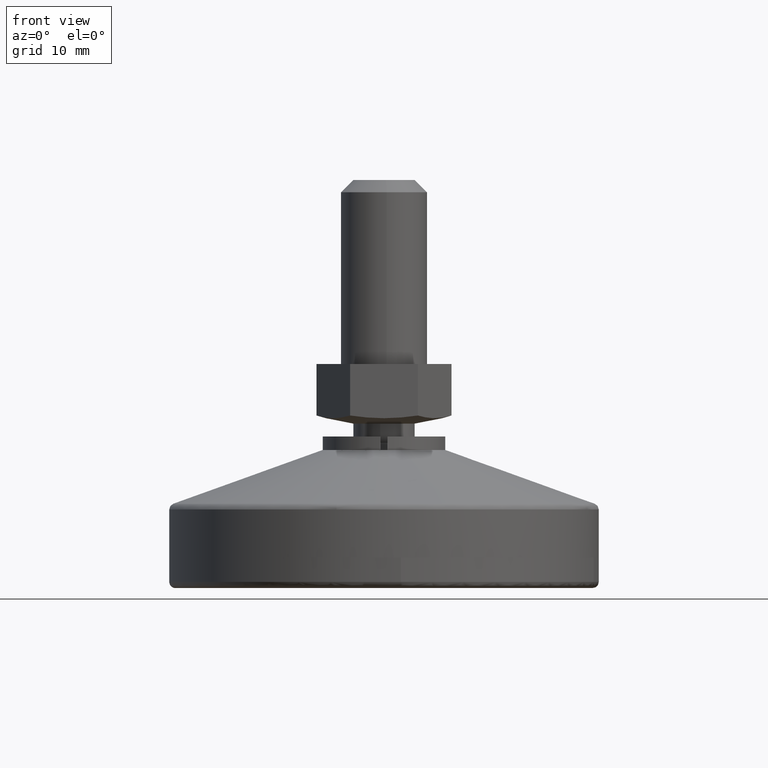
[diagram: clean part render]
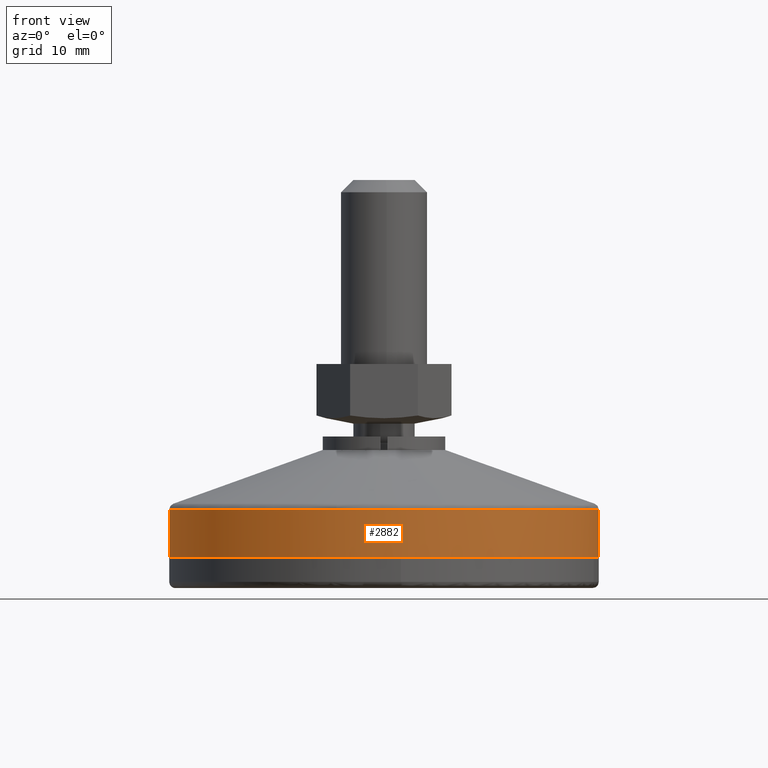
[diagram: same view with one face highlighted and labeled with its STEP entity id]
A machine part, front view. The second image highlights one B-rep face of the part: STEP entity #2882.
In plain terms, the highlighted face is a freeform B-spline surface patch.
Its self-contained STEP definition (entity closure, byte-faithful):
#2716=CARTESIAN_POINT('',(32.765025257183019,12.306629103705010,12.992102325194528));
#2717=CARTESIAN_POINT('',(34.613740677780285,7.384630810039270,12.992102325194523));
#2718=CARTESIAN_POINT('',(34.934717944765339,2.136698883719975,12.992102325194530));
#2719=CARTESIAN_POINT('',(37.071416828485312,-32.798019061045366,12.992102325194525));
#2720=CARTESIAN_POINT('',(2.136698883719975,-34.934717944765339,12.992102325194530));
#2721=CARTESIAN_POINT('',(-32.798019061045366,-37.071416828485312,12.992102325194525));
#2722=CARTESIAN_POINT('',(-34.934717944765339,-2.136698883719975,12.992102325194530));
#2723=CARTESIAN_POINT('',(-37.071416828485312,32.798019061045366,12.992102325194525));
#2724=CARTESIAN_POINT('',(-2.136698883719975,34.934717944765339,12.992102325194530));
#2725=CARTESIAN_POINT('',(32.765025257183019,12.306629103705010,4.800197441869929));
#2726=CARTESIAN_POINT('',(34.613740677780285,7.384630810039270,4.800197441869930));
#2727=CARTESIAN_POINT('',(34.934717944765339,2.136698883719975,4.800197441869930));
#2728=CARTESIAN_POINT('',(37.071416828485312,-32.798019061045366,4.800197441869930));
#2729=CARTESIAN_POINT('',(2.136698883719975,-34.934717944765339,4.800197441869930));
#2730=CARTESIAN_POINT('',(-32.798019061045366,-37.071416828485312,4.800197441869930));
#2731=CARTESIAN_POINT('',(-34.934717944765339,-2.136698883719975,4.800197441869930));
#2732=CARTESIAN_POINT('',(-37.071416828485312,32.798019061045366,4.800197441869930));
#2733=CARTESIAN_POINT('',(-2.136698883719975,34.934717944765339,4.800197441869930));
#2741=(BOUNDED_SURFACE()B_SPLINE_SURFACE(2,1,((#2716,#2725),(#2717,#2726),(#2718,#2727),(#2719,#2728),(#2720,#2729),(#2721,#2730),(#2722,#2731),(#2723,#2732),(#2724,#2733)),.UNSPECIFIED.,.F.,.F.,.U.)B_SPLINE_SURFACE_WITH_KNOTS((3,2,2,2,3),(2,2),(0.0,11.597979746446660,69.587878478679954,127.577777210913300,185.567675943146610),(0.0,8.191904883324597),.UNSPECIFIED.)GEOMETRIC_REPRESENTATION_ITEM()RATIONAL_B_SPLINE_SURFACE(((0.906274169979695,0.906274169979695),(0.941421356237309,0.941421356237309),(1.0,1.0),(0.707106781186548,0.707106781186548),(1.0,1.0),(0.707106781186548,0.707106781186548),(1.0,1.0),(0.707106781186548,0.707106781186548),(1.0,1.0)))REPRESENTATION_ITEM('')SURFACE());
#2742=CARTESIAN_POINT('',(32.765031549489123,12.306612351116870,12.797172999999781));
#2743=VERTEX_POINT('',#2742);
#2744=CARTESIAN_POINT('',(35.0,0.0,12.797172999999900));
#2745=VERTEX_POINT('',#2744);
#2746=CARTESIAN_POINT('',(32.765031549489130,12.306612351116863,12.797172999999772));
#2747=CARTESIAN_POINT('',(35.000000000000007,6.356249269574293,12.797172999999903));
#2748=CARTESIAN_POINT('',(35.0,0.0,12.797172999999900));
#2756=(BOUNDED_CURVE()B_SPLINE_CURVE(2,(#2746,#2747,#2748),.UNSPECIFIED.,.F.,.U.)B_SPLINE_CURVE_WITH_KNOTS((3,3),(0.440284251657866,0.500000000000000),.UNSPECIFIED.)CURVE()GEOMETRIC_REPRESENTATION_ITEM()RATIONAL_B_SPLINE_CURVE((0.893499653465619,0.930038649016873,1.0))REPRESENTATION_ITEM(''));
#2757=EDGE_CURVE('',#2743,#2745,#2756,.T.);
#2758=ORIENTED_EDGE('',*,*,#2757,.T.);
#2759=CARTESIAN_POINT('',(33.004668756250076,-11.648684058305030,12.797173000186749));
#2760=VERTEX_POINT('',#2759);
#2761=CARTESIAN_POINT('',(35.0,0.0,12.797172999999900));
#2762=CARTESIAN_POINT('',(35.000000000000007,-5.995234584584744,12.797172999999901));
#2763=CARTESIAN_POINT('',(33.004668756250084,-11.648684058305026,12.797173000186749));
#2771=(BOUNDED_CURVE()B_SPLINE_CURVE(2,(#2761,#2762,#2763),.UNSPECIFIED.,.F.,.U.)B_SPLINE_CURVE_WITH_KNOTS((3,3),(0.500000000000000,0.556548785515300),.UNSPECIFIED.)CURVE()GEOMETRIC_REPRESENTATION_ITEM()RATIONAL_B_SPLINE_CURVE((1.0,0.933748976761729,0.897469272749619))REPRESENTATION_ITEM(''));
#2772=EDGE_CURVE('',#2745,#2760,#2771,.T.);
#2773=ORIENTED_EDGE('',*,*,#2772,.T.);
#2774=CARTESIAN_POINT('',(-7.759914809508599,-34.128927937296382,12.797173000189780));
#2775=VERTEX_POINT('',#2774);
#2776=CARTESIAN_POINT('',(33.004668756250091,-11.648684058305022,12.797173000186755));
#2777=CARTESIAN_POINT('',(24.763043798297179,-34.999999999999993,12.797172999999901));
#2778=CARTESIAN_POINT('',(0.0,-35.0,12.797172999999900));
#2779=CARTESIAN_POINT('',(-3.928847538025913,-35.000000000000007,12.797172999999907));
#2780=CARTESIAN_POINT('',(-7.759914809508599,-34.128927937296382,12.797173000189780));
#2788=(BOUNDED_CURVE()B_SPLINE_CURVE(2,(#2776,#2777,#2778,#2779,#2780),.UNSPECIFIED.,.F.,.U.)B_SPLINE_CURVE_WITH_KNOTS((3,2,3),(0.556548785515299,0.750000000000000,0.787924014625664),.UNSPECIFIED.)CURVE()GEOMETRIC_REPRESENTATION_ITEM()RATIONAL_B_SPLINE_CURVE((0.897469272749620,0.773357804424818,1.0,0.955569253143844,0.924618444636503))REPRESENTATION_ITEM(''));
#2789=EDGE_CURVE('',#2760,#2775,#2788,.T.);
#2790=ORIENTED_EDGE('',*,*,#2789,.T.);
#2791=CARTESIAN_POINT('',(-35.0,0.0,12.797172999999900));
#2792=VERTEX_POINT('',#2791);
#2793=CARTESIAN_POINT('',(-7.759914809508599,-34.128927937296375,12.797173000189778));
#2794=CARTESIAN_POINT('',(-35.0,-27.935333433820077,12.797172999999903));
#2795=CARTESIAN_POINT('',(-35.0,0.0,12.797172999999900));
#2803=(BOUNDED_CURVE()B_SPLINE_CURVE(2,(#2793,#2794,#2795),.UNSPECIFIED.,.F.,.U.)B_SPLINE_CURVE_WITH_KNOTS((3,3),(0.787924014625663,1.0),.UNSPECIFIED.)CURVE()GEOMETRIC_REPRESENTATION_ITEM()RATIONAL_B_SPLINE_CURVE((0.924618444636505,0.751537528042703,1.0))REPRESENTATION_ITEM(''));
#2804=EDGE_CURVE('',#2775,#2792,#2803,.T.);
#2805=ORIENTED_EDGE('',*,*,#2804,.T.);
#2806=CARTESIAN_POINT('',(-2.136680497017852,34.934719069334513,12.797173000000081));
#2807=VERTEX_POINT('',#2806);
#2808=CARTESIAN_POINT('',(-35.0,0.0,12.797172999999900));
#2809=CARTESIAN_POINT('',(-35.000000000000007,32.924729702889131,12.797172999999901));
#2810=CARTESIAN_POINT('',(-2.136680497017851,34.934719069334506,12.797173000000077));
#2818=(BOUNDED_CURVE()B_SPLINE_CURVE(2,(#2808,#2809,#2810),.UNSPECIFIED.,.F.,.U.)B_SPLINE_CURVE_WITH_KNOTS((3,3),(0.0,0.239333053056116),.UNSPECIFIED.)CURVE()GEOMETRIC_REPRESENTATION_ITEM()RATIONAL_B_SPLINE_CURVE((1.0,0.719603886887773,0.976072236305285))REPRESENTATION_ITEM(''));
#2819=EDGE_CURVE('',#2792,#2807,#2818,.T.);
#2820=ORIENTED_EDGE('',*,*,#2819,.T.);
#2821=CARTESIAN_POINT('',(-2.136680718681324,34.934719055777222,4.999999999999801));
#2822=VERTEX_POINT('',#2821);
#2823=CARTESIAN_POINT('',(-2.136680497017852,34.934719069334513,12.797173000000081));
#2824=CARTESIAN_POINT('',(-2.136680718681324,34.934719055777222,4.999999999999801));
#2825=QUASI_UNIFORM_CURVE('',1,(#2823,#2824),.UNSPECIFIED.,.F.,.U.);
#2826=EDGE_CURVE('',#2807,#2822,#2825,.T.);
#2827=ORIENTED_EDGE('',*,*,#2826,.T.);
#2828=CARTESIAN_POINT('',(-35.0,0.0,4.999999999999800));
#2829=VERTEX_POINT('',#2828);
#2830=CARTESIAN_POINT('',(-35.0,0.0,4.999999999999800));
#2831=CARTESIAN_POINT('',(-35.0,32.924729493588835,4.999999999999800));
#2832=CARTESIAN_POINT('',(-2.136680718681324,34.934719055777222,4.999999999999802));
#2840=(BOUNDED_CURVE()B_SPLINE_CURVE(2,(#2830,#2831,#2832),.UNSPECIFIED.,.F.,.U.)B_SPLINE_CURVE_WITH_KNOTS((3,3),(0.0,0.239333051961294),.UNSPECIFIED.)CURVE()GEOMETRIC_REPRESENTATION_ITEM()RATIONAL_B_SPLINE_CURVE((1.0,0.719603888170438,0.976072233958870))REPRESENTATION_ITEM(''));
#2841=EDGE_CURVE('',#2829,#2822,#2840,.T.);
#2842=ORIENTED_EDGE('',*,*,#2841,.F.);
#2843=CARTESIAN_POINT('',(35.0,0.0,4.999999999999800));
#2844=VERTEX_POINT('',#2843);
#2845=CARTESIAN_POINT('',(35.0,0.0,4.999999999999800));
#2846=CARTESIAN_POINT('',(34.999999999999993,-34.999999999999993,4.999999999999801));
#2847=CARTESIAN_POINT('',(0.0,-35.0,4.999999999999800));
#2848=CARTESIAN_POINT('',(-34.999999999999993,-34.999999999999993,4.999999999999801));
#2849=CARTESIAN_POINT('',(-35.0,0.0,4.999999999999800));
#2857=(BOUNDED_CURVE()B_SPLINE_CURVE(2,(#2845,#2846,#2847,#2848,#2849),.UNSPECIFIED.,.F.,.U.)B_SPLINE_CURVE_WITH_KNOTS((3,2,3),(0.500000000000000,0.750000000000000,1.0),.UNSPECIFIED.)CURVE()GEOMETRIC_REPRESENTATION_ITEM()RATIONAL_B_SPLINE_CURVE((1.0,0.707106781186548,1.0,0.707106781186548,1.0))REPRESENTATION_ITEM(''));
#2858=EDGE_CURVE('',#2844,#2829,#2857,.T.);
#2859=ORIENTED_EDGE('',*,*,#2858,.F.);
#2860=CARTESIAN_POINT('',(32.765031473689120,12.306612552926531,4.999999999999801));
#2861=VERTEX_POINT('',#2860);
#2862=CARTESIAN_POINT('',(32.765031473689120,12.306612552926538,4.999999999999801));
#2863=CARTESIAN_POINT('',(35.0,6.356249380916992,4.999999999999800));
#2864=CARTESIAN_POINT('',(35.0,0.0,4.999999999999800));
#2872=(BOUNDED_CURVE()B_SPLINE_CURVE(2,(#2862,#2863,#2864),.UNSPECIFIED.,.F.,.U.)B_SPLINE_CURVE_WITH_KNOTS((3,3),(0.440284250685005,0.500000000000000),.UNSPECIFIED.)CURVE()GEOMETRIC_REPRESENTATION_ITEM()RATIONAL_B_SPLINE_CURVE((0.893499652275067,0.930038647877095,1.0))REPRESENTATION_ITEM(''));
#2873=EDGE_CURVE('',#2861,#2844,#2872,.T.);
#2874=ORIENTED_EDGE('',*,*,#2873,.F.);
#2875=CARTESIAN_POINT('',(32.765031549489123,12.306612351116870,12.797172999999781));
#2876=CARTESIAN_POINT('',(32.765031473689120,12.306612552926531,4.999999999999801));
#2877=QUASI_UNIFORM_CURVE('',1,(#2875,#2876),.UNSPECIFIED.,.F.,.U.);
#2878=EDGE_CURVE('',#2743,#2861,#2877,.T.);
#2879=ORIENTED_EDGE('',*,*,#2878,.F.);
#2880=EDGE_LOOP('',(#2758,#2773,#2790,#2805,#2820,#2827,#2842,#2859,#2874,#2879));
#2881=FACE_OUTER_BOUND('',#2880,.T.);
#2882=ADVANCED_FACE('',(#2881),#2741,.T.);